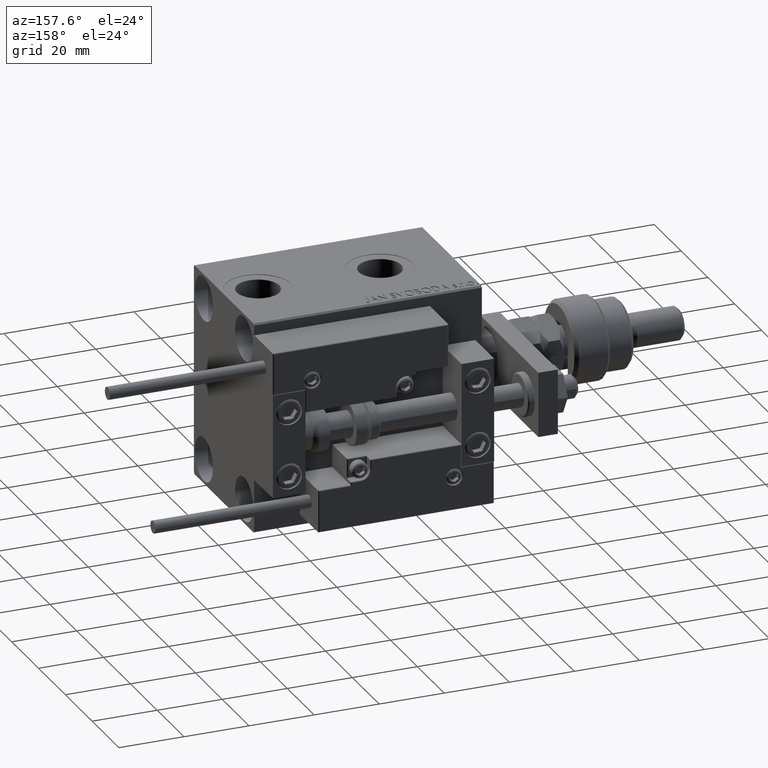
[diagram: clean part render]
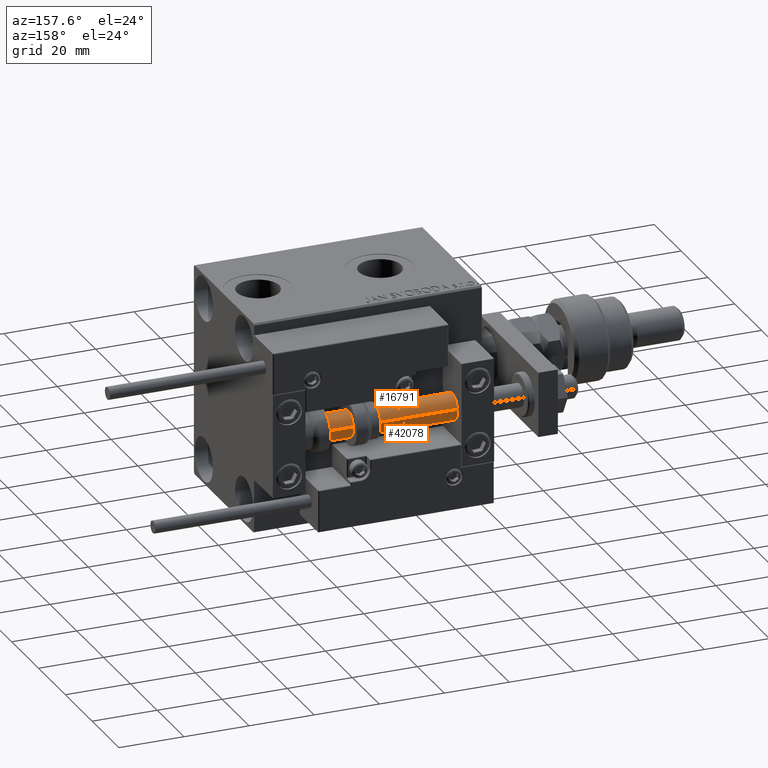
[diagram: same view with one multi-face feature highlighted, each face labeled with its STEP entity id]
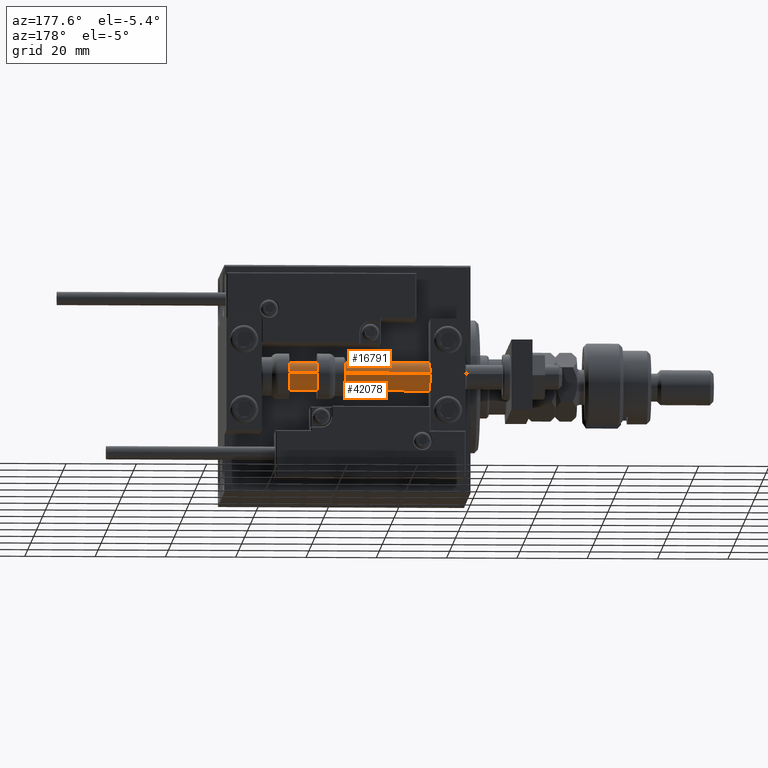
[diagram: same view with one multi-face feature highlighted, each face labeled with its STEP entity id]
A machine part, auxiliary view. The highlighted faces form ONE feature: a constant-radius fillet chain: 2 tangent blend faces with common blend radius 4 mm. The faces share edges in the B-rep.
A second angle (auxiliary view) of the same feature is appended — it is thin or edge-on in the first view.
Their STEP definitions:
[1] entity #42078 (Cylinder):
#107 = CARTESIAN_POINT ( 'NONE',  ( 0.000000000000000000, 0.000000000000000000, 2.000000000000029310 ) ) ;
#1545 = CARTESIAN_POINT ( 'NONE',  ( 4.000000000000000000, 4.898587196589412829E-16, 70.00000000000000000 ) ) ;
#1844 = DIRECTION ( 'NONE',  ( 0.000000000000000000, 0.000000000000000000, 1.000000000000000000 ) ) ;
#2615 = CARTESIAN_POINT ( 'NONE',  ( 4.000000000000000000, 4.898587196589412829E-16, 2.000000000000029310 ) ) ;
#4160 = EDGE_CURVE ( 'NONE', #37705, #47677, #13871, .T. ) ;
#5229 = VERTEX_POINT ( 'NONE', #36159 ) ;
#7640 = CIRCLE ( 'NONE', #44562, 4.000000000000000000 ) ;
#10867 = DIRECTION ( 'NONE',  ( -0.000000000000000000, -0.000000000000000000, -1.000000000000000000 ) ) ;
#11038 = ORIENTED_EDGE ( 'NONE', *, *, #4160, .F. ) ;
#11049 = AXIS2_PLACEMENT_3D ( 'NONE', #27629, #1844, #51042 ) ;
#11202 = LINE ( 'NONE', #31898, #15415 ) ;
#13209 = EDGE_CURVE ( 'NONE', #5229, #47677, #7640, .T. ) ;
#13871 = LINE ( 'NONE', #1545, #14978 ) ;
#14046 = EDGE_CURVE ( 'NONE', #46042, #5229, #11202, .T. ) ;
#14751 = ORIENTED_EDGE ( 'NONE', *, *, #52903, .F. ) ;
#14978 = VECTOR ( 'NONE', #17652, 1000.000000000000000 ) ;
#15415 = VECTOR ( 'NONE', #36728, 1000.000000000000000 ) ;
#17652 = DIRECTION ( 'NONE',  ( -0.000000000000000000, -0.000000000000000000, -1.000000000000000000 ) ) ;
#21844 = ORIENTED_EDGE ( 'NONE', *, *, #13209, .T. ) ;
#27629 = CARTESIAN_POINT ( 'NONE',  ( 0.000000000000000000, 0.000000000000000000, 70.00000000000000000 ) ) ;
#28822 = CARTESIAN_POINT ( 'NONE',  ( -4.000000000000000000, 0.000000000000000000, 70.00000000000000000 ) ) ;
#30774 = DIRECTION ( 'NONE',  ( -1.000000000000000000, 0.000000000000000000, 0.000000000000000000 ) ) ;
#31898 = CARTESIAN_POINT ( 'NONE',  ( -4.000000000000000000, 0.000000000000000000, 70.00000000000000000 ) ) ;
#33877 = ORIENTED_EDGE ( 'NONE', *, *, #14046, .T. ) ;
#36159 = CARTESIAN_POINT ( 'NONE',  ( -4.000000000000000000, 0.000000000000000000, 2.000000000000029310 ) ) ;
#36380 = DIRECTION ( 'NONE',  ( 1.000000000000000000, 0.000000000000000000, 0.000000000000000000 ) ) ;
#36728 = DIRECTION ( 'NONE',  ( -0.000000000000000000, -0.000000000000000000, -1.000000000000000000 ) ) ;
#37658 = CIRCLE ( 'NONE', #11049, 4.000000000000000000 ) ;
#37705 = VERTEX_POINT ( 'NONE', #48205 ) ;
#39119 = CYLINDRICAL_SURFACE ( 'NONE', #47697, 4.000000000000000000 ) ;
#42078 = ADVANCED_FACE ( 'NONE', ( #47725 ), #39119, .T. ) ;
#44562 = AXIS2_PLACEMENT_3D ( 'NONE', #107, #52528, #36380 ) ;
#46042 = VERTEX_POINT ( 'NONE', #28822 ) ;
#47270 = EDGE_LOOP ( 'NONE', ( #11038, #14751, #33877, #21844 ) ) ;
#47677 = VERTEX_POINT ( 'NONE', #2615 ) ;
#47697 = AXIS2_PLACEMENT_3D ( 'NONE', #52007, #10867, #30774 ) ;
#47725 = FACE_OUTER_BOUND ( 'NONE', #47270, .T. ) ;
#48205 = CARTESIAN_POINT ( 'NONE',  ( 4.000000000000000000, 4.898587196589412829E-16, 70.00000000000000000 ) ) ;
#51042 = DIRECTION ( 'NONE',  ( 1.000000000000000000, 0.000000000000000000, 0.000000000000000000 ) ) ;
#52007 = CARTESIAN_POINT ( 'NONE',  ( 0.000000000000000000, 0.000000000000000000, 70.00000000000000000 ) ) ;
#52528 = DIRECTION ( 'NONE',  ( -0.000000000000000000, -0.000000000000000000, 1.000000000000000000 ) ) ;
#52903 = EDGE_CURVE ( 'NONE', #46042, #37705, #37658, .T. ) ;
[2] entity #16791 (Cylinder):
#1545 = CARTESIAN_POINT ( 'NONE',  ( 4.000000000000000000, 4.898587196589412829E-16, 70.00000000000000000 ) ) ;
#2615 = CARTESIAN_POINT ( 'NONE',  ( 4.000000000000000000, 4.898587196589412829E-16, 2.000000000000029310 ) ) ;
#4160 = EDGE_CURVE ( 'NONE', #37705, #47677, #13871, .T. ) ;
#5229 = VERTEX_POINT ( 'NONE', #36159 ) ;
#5564 = DIRECTION ( 'NONE',  ( -0.000000000000000000, -0.000000000000000000, 1.000000000000000000 ) ) ;
#7403 = CYLINDRICAL_SURFACE ( 'NONE', #18106, 4.000000000000000000 ) ;
#7659 = DIRECTION ( 'NONE',  ( -1.000000000000000000, 0.000000000000000000, 0.000000000000000000 ) ) ;
#11202 = LINE ( 'NONE', #31898, #15415 ) ;
#12663 = CARTESIAN_POINT ( 'NONE',  ( 0.000000000000000000, 0.000000000000000000, 70.00000000000000000 ) ) ;
#13368 = CIRCLE ( 'NONE', #20220, 4.000000000000000000 ) ;
#13871 = LINE ( 'NONE', #1545, #14978 ) ;
#14046 = EDGE_CURVE ( 'NONE', #46042, #5229, #11202, .T. ) ;
#14978 = VECTOR ( 'NONE', #17652, 1000.000000000000000 ) ;
#15118 = ORIENTED_EDGE ( 'NONE', *, *, #4160, .T. ) ;
#15415 = VECTOR ( 'NONE', #36728, 1000.000000000000000 ) ;
#15969 = DIRECTION ( 'NONE',  ( -0.000000000000000000, -0.000000000000000000, -1.000000000000000000 ) ) ;
#16791 = ADVANCED_FACE ( 'NONE', ( #44233 ), #7403, .T. ) ;
#17202 = ORIENTED_EDGE ( 'NONE', *, *, #43674, .F. ) ;
#17236 = DIRECTION ( 'NONE',  ( 0.000000000000000000, 0.000000000000000000, 1.000000000000000000 ) ) ;
#17652 = DIRECTION ( 'NONE',  ( -0.000000000000000000, -0.000000000000000000, -1.000000000000000000 ) ) ;
#17766 = DIRECTION ( 'NONE',  ( 1.000000000000000000, 0.000000000000000000, 0.000000000000000000 ) ) ;
#18106 = AXIS2_PLACEMENT_3D ( 'NONE', #23803, #15969, #7659 ) ;
#20220 = AXIS2_PLACEMENT_3D ( 'NONE', #12663, #17236, #17766 ) ;
#23803 = CARTESIAN_POINT ( 'NONE',  ( 0.000000000000000000, 0.000000000000000000, 70.00000000000000000 ) ) ;
#26776 = DIRECTION ( 'NONE',  ( 1.000000000000000000, 0.000000000000000000, 0.000000000000000000 ) ) ;
#28822 = CARTESIAN_POINT ( 'NONE',  ( -4.000000000000000000, 0.000000000000000000, 70.00000000000000000 ) ) ;
#31583 = EDGE_LOOP ( 'NONE', ( #17202, #15118, #41537, #52783 ) ) ;
#31898 = CARTESIAN_POINT ( 'NONE',  ( -4.000000000000000000, 0.000000000000000000, 70.00000000000000000 ) ) ;
#33946 = AXIS2_PLACEMENT_3D ( 'NONE', #42395, #5564, #26776 ) ;
#36159 = CARTESIAN_POINT ( 'NONE',  ( -4.000000000000000000, 0.000000000000000000, 2.000000000000029310 ) ) ;
#36728 = DIRECTION ( 'NONE',  ( -0.000000000000000000, -0.000000000000000000, -1.000000000000000000 ) ) ;
#37705 = VERTEX_POINT ( 'NONE', #48205 ) ;
#41537 = ORIENTED_EDGE ( 'NONE', *, *, #45593, .T. ) ;
#42395 = CARTESIAN_POINT ( 'NONE',  ( 0.000000000000000000, 0.000000000000000000, 2.000000000000029310 ) ) ;
#43674 = EDGE_CURVE ( 'NONE', #37705, #46042, #13368, .T. ) ;
#44233 = FACE_OUTER_BOUND ( 'NONE', #31583, .T. ) ;
#45593 = EDGE_CURVE ( 'NONE', #47677, #5229, #50272, .T. ) ;
#46042 = VERTEX_POINT ( 'NONE', #28822 ) ;
#47677 = VERTEX_POINT ( 'NONE', #2615 ) ;
#48205 = CARTESIAN_POINT ( 'NONE',  ( 4.000000000000000000, 4.898587196589412829E-16, 70.00000000000000000 ) ) ;
#50272 = CIRCLE ( 'NONE', #33946, 4.000000000000000000 ) ;
#52783 = ORIENTED_EDGE ( 'NONE', *, *, #14046, .F. ) ;